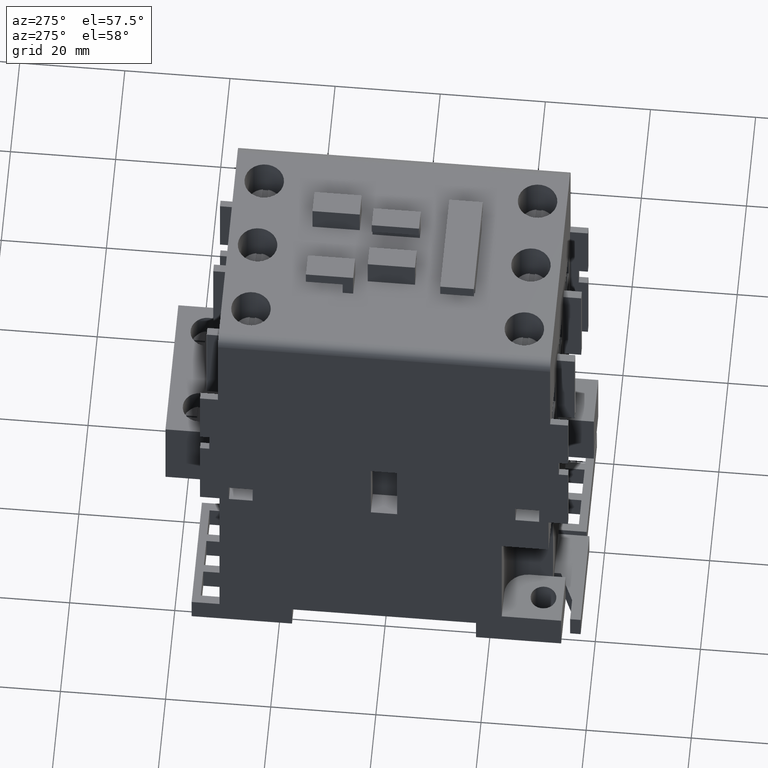
[diagram: clean part render]
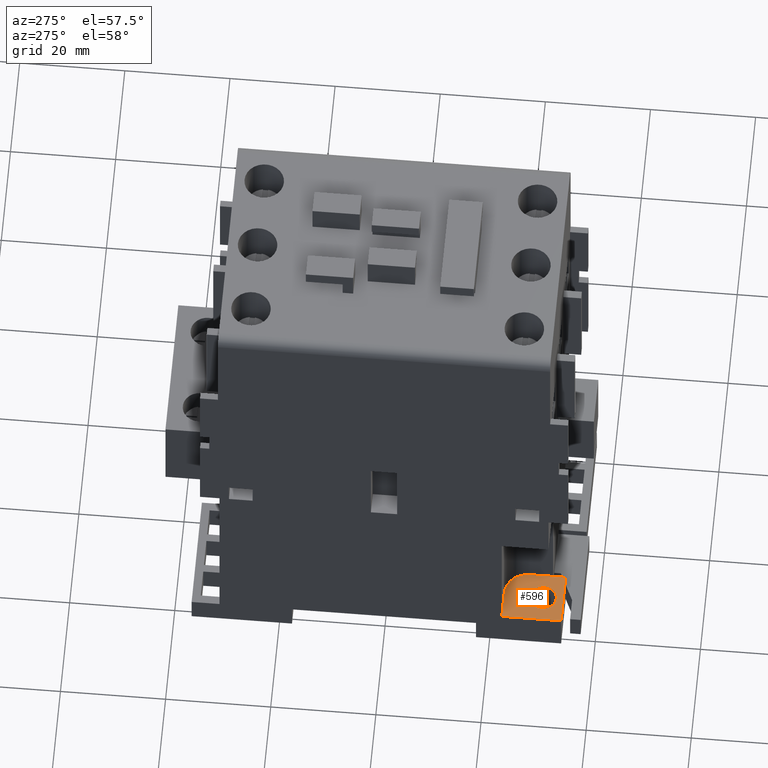
[diagram: same view with one face highlighted and labeled with its STEP entity id]
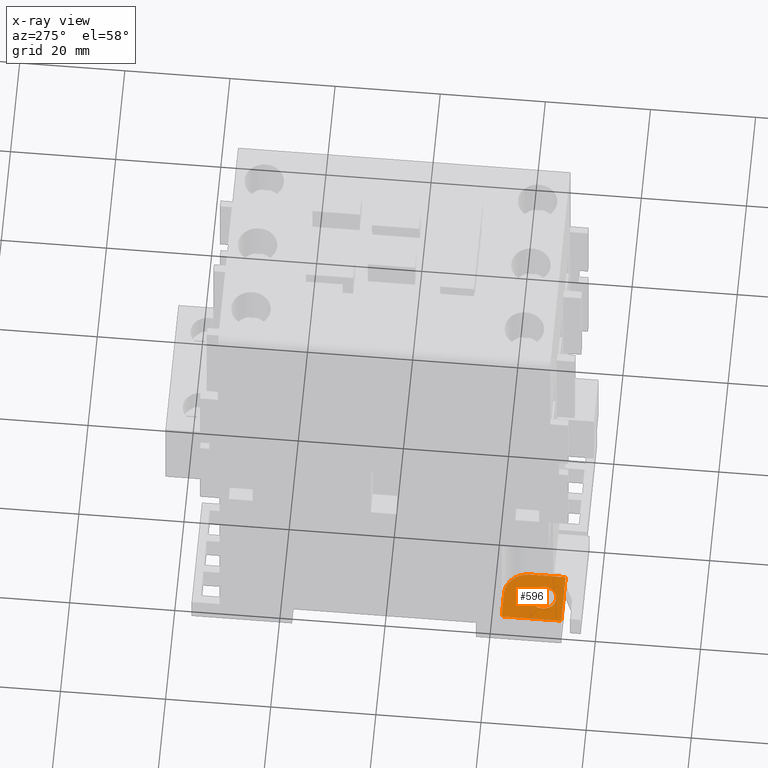
[diagram: x-ray of the same camera — body ghosted, the highlighted face saturated]
A machine part, auxiliary view. The second image highlights one B-rep face of the part: STEP entity #596.
The next image is the same camera in x-ray: the body ghosted, the highlighted face saturated — about 0% of this face is hidden behind the body in this view.
In plain terms, the highlighted planar face has unit normal (0, 0, -1).
Its self-contained STEP definition (entity closure, byte-faithful):
#131=CIRCLE('',#7559,4.5);
#132=CIRCLE('',#7560,2.45);
#596=ADVANCED_FACE('',(#1366,#1367),#988,.F.);
#988=PLANE('',#7561);
#1366=FACE_BOUND('',#1504,.T.);
#1367=FACE_BOUND('',#1505,.T.);
#1504=EDGE_LOOP('',(#2191,#2192,#2193,#2194,#2195,#2196));
#1505=EDGE_LOOP('',(#2197));
#2191=ORIENTED_EDGE('',*,*,#4905,.F.);
#2192=ORIENTED_EDGE('',*,*,#4906,.F.);
#2193=ORIENTED_EDGE('',*,*,#4907,.F.);
#2194=ORIENTED_EDGE('',*,*,#4908,.F.);
#2195=ORIENTED_EDGE('',*,*,#4677,.F.);
#2196=ORIENTED_EDGE('',*,*,#4909,.F.);
#2197=ORIENTED_EDGE('',*,*,#4910,.F.);
#3985=VERTEX_POINT('',#9961);
#3986=VERTEX_POINT('',#9963);
#4189=VERTEX_POINT('',#10416);
#4190=VERTEX_POINT('',#10417);
#4191=VERTEX_POINT('',#10419);
#4192=VERTEX_POINT('',#10421);
#4193=VERTEX_POINT('',#10425);
#4677=EDGE_CURVE('',#3985,#3986,#5700,.T.);
#4905=EDGE_CURVE('',#4189,#4190,#5918,.T.);
#4906=EDGE_CURVE('',#4191,#4189,#5919,.T.);
#4907=EDGE_CURVE('',#4192,#4191,#131,.T.);
#4908=EDGE_CURVE('',#3986,#4192,#5920,.T.);
#4909=EDGE_CURVE('',#4190,#3985,#5921,.T.);
#4910=EDGE_CURVE('',#4193,#4193,#132,.T.);
#5700=LINE('',#9962,#6619);
#5918=LINE('',#10415,#6837);
#5919=LINE('',#10418,#6838);
#5920=LINE('',#10422,#6839);
#5921=LINE('',#10423,#6840);
#6619=VECTOR('',#8037,1.);
#6837=VECTOR('',#8319,1.);
#6838=VECTOR('',#8320,1.);
#6839=VECTOR('',#8323,1.);
#6840=VECTOR('',#8324,1.);
#7559=AXIS2_PLACEMENT_3D('',#10420,#8321,#8322);
#7560=AXIS2_PLACEMENT_3D('',#10424,#8325,#8326);
#7561=AXIS2_PLACEMENT_3D('',#10426,#8327,#8328);
#8037=DIRECTION('',(0.,1.,0.));
#8319=DIRECTION('',(0.,-1.,-3.61400724161837E-016));
#8320=DIRECTION('',(0.,-1.,9.85638338623186E-017));
#8321=DIRECTION('',(0.,0.,-1.));
#8322=DIRECTION('',(1.,0.,0.));
#8323=DIRECTION('',(1.,-1.30922526488815E-015,0.));
#8324=DIRECTION('',(-1.,0.,0.));
#8325=DIRECTION('',(0.,0.,1.));
#8326=DIRECTION('',(0.,-1.,0.));
#8327=DIRECTION('',(0.,3.61400724161837E-016,-1.));
#8328=DIRECTION('',(0.,1.,3.6125616387217E-016));
#9961=CARTESIAN_POINT('',(-22.3,-33.6999999999992,2.99999999999999));
#9962=CARTESIAN_POINT('',(-22.3,-33.6999999999992,2.99999999999999));
#9963=CARTESIAN_POINT('',(-22.3,-22.3999999999992,2.99999999999999));
#10415=CARTESIAN_POINT('',(-12.5,-31.2999999999993,2.99999999999999));
#10416=CARTESIAN_POINT('',(-12.5,-31.2999999999993,2.99999999999999));
#10417=CARTESIAN_POINT('',(-12.5,-33.6999999999992,2.99999999999999));
#10418=CARTESIAN_POINT('',(-12.5,-26.8999999999993,2.99999999999999));
#10419=CARTESIAN_POINT('',(-12.5,-26.8999999999992,2.99999999999999));
#10420=CARTESIAN_POINT('',(-17.,-26.8999999999992,2.99999999999999));
#10421=CARTESIAN_POINT('',(-17.,-22.3999999999992,2.99999999999999));
#10422=CARTESIAN_POINT('',(-22.3,-22.3999999999992,2.99999999999999));
#10423=CARTESIAN_POINT('',(-12.5,-33.6999999999992,2.99999999999999));
#10424=CARTESIAN_POINT('',(-17.4,-29.8999999999992,2.99999999999999));
#10425=CARTESIAN_POINT('',(-17.4,-32.3499999999992,2.99999999999999));
#10426=CARTESIAN_POINT('',(-12.5,-33.6999999999992,2.99999999999999));